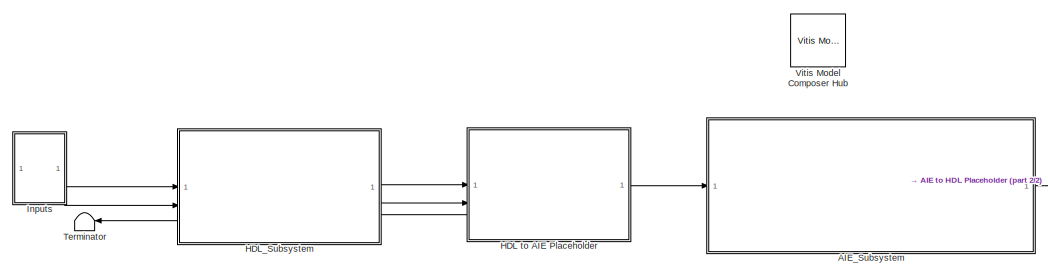
[diagram: root canvas - part 1/2, left side, full height]
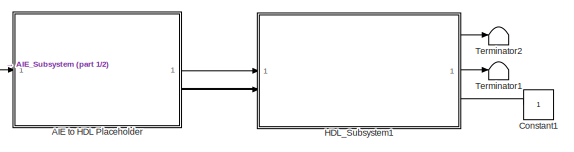
[diagram: root canvas - part 2/2, bottom right region]
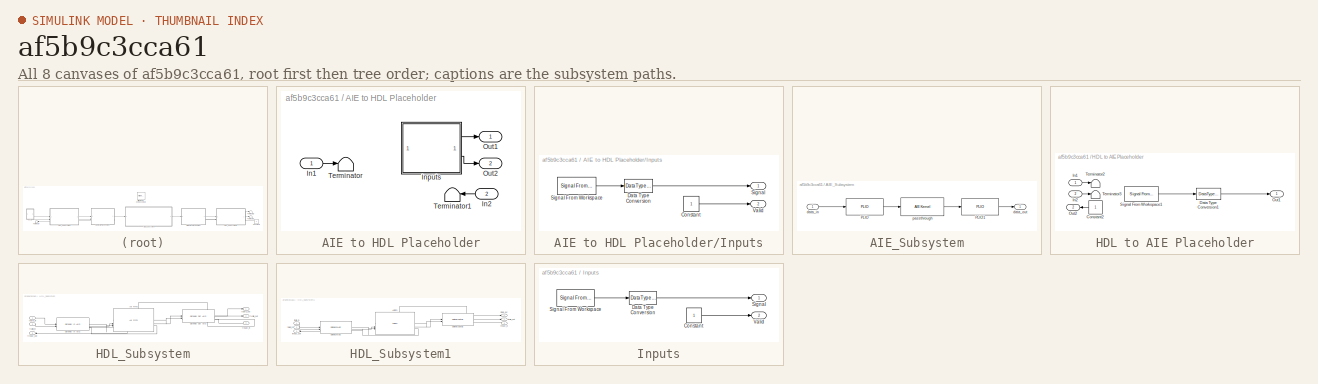
[diagram: thumbnail index - all 8 canvases of the model, root first then tree order]
MODEL slx_af5b9c3cca61
KIND model
CONFIG AbsTol = auto
CONFIG EnableMultiTasking = off
CONFIG FixedStep = auto
CONFIG InitFcn = xlEvaluateHDLBlocks('AIE_HDL')
CONFIG MaxStep = auto
CONFIG MinStep = auto
CONFIG RelTol = 1e-3
CONFIG SampleTimeConstraint = Unconstrained
CONFIG SolverName = FixedStepDiscrete
CONFIG StartTime = 0.0
CONFIG StopTime = 100*2e-9
BLOCK [SubSystem] AIE to HDL Placeholder
  PortSchema = {"entries":[{"content":{"sides":[{"content":{"connectorIds":["In1"]},"type":"ConnectorPlacement.EquallySpacedRectSide","uuid":"7ec462a4-9987-47a7-8ef6-3d77f6cbc297"},{"content":{"connectorIds":["Out1","Out2","In2"],"side":"RIGHT"},"type":"ConnectorPlacement.EquallySpacedRectSide","uuid":"048d0a02-5e23-4721-b2a0-067b0b8ade54"},{"content":{"connectorIds":[],"side":"TOP"},"type":"ConnectorPlacement.E...<+253ch>
BLOCK [Inport] AIE to HDL Placeholder/In1
BLOCK [Inport] AIE to HDL Placeholder/In2
  Port = 2
BLOCK [SubSystem] AIE to HDL Placeholder/Inputs
BLOCK [Constant] AIE to HDL Placeholder/Inputs/Constant
  OutDataTypeStr = boolean
  SampleTime = 2e-9
BLOCK [DataTypeConversion] AIE to HDL Placeholder/Inputs/Data Type Conversion
  OutDataTypeStr = uint64
  RndMeth = Floor
  SaturateOnIntegerOverflow = off
BLOCK [Outport] AIE to HDL Placeholder/Inputs/Signal
BLOCK [Reference] AIE to HDL Placeholder/Inputs/Signal From Workspace  REF=dspsrcs4/Signal From
Workspace
  SourceBlock = dspsrcs4/Signal From\nWorkspace
  SourceType = Signal From Workspace
BLOCK [Outport] AIE to HDL Placeholder/Inputs/Valid
  Port = 2
BLOCK [Outport] AIE to HDL Placeholder/Out1
BLOCK [Outport] AIE to HDL Placeholder/Out2
  Port = 2
BLOCK [Terminator] AIE to HDL Placeholder/Terminator
BLOCK [Terminator] AIE to HDL Placeholder/Terminator1
BLOCK [SubSystem] AIE_Subsystem
BLOCK [Reference] AIE_Subsystem/PLIO  REF=aieBasic/PLIO
  SourceBlock = aieBasic/PLIO
  SourceType = PLIO
BLOCK [Reference] AIE_Subsystem/PLIO1  REF=aieBasic/PLIO
  SourceBlock = aieBasic/PLIO
  SourceType = PLIO
BLOCK [Inport] AIE_Subsystem/data_in
BLOCK [Outport] AIE_Subsystem/data_out
BLOCK [Reference] AIE_Subsystem/passthrough  REF=aieBasic/AIE Kernel
  SourceBlock = aieBasic/AIE Kernel
  SourceType = AIE Kernel Function
BLOCK [Constant] Constant1
  OutDataTypeStr = boolean
  SampleTime = 2e-9
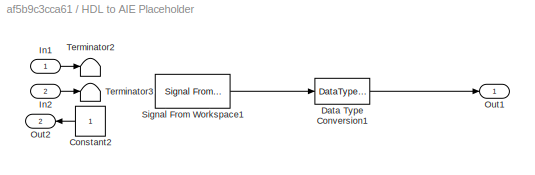
BLOCK [SubSystem] HDL to AIE Placeholder
  PortSchema = {"entries":[{"content":{"sides":[{"content":{"connectorIds":["In1","In2","Out2"]},"type":"ConnectorPlacement.EquallySpacedRectSide","uuid":"7ec462a4-9987-47a7-8ef6-3d77f6cbc297"},{"content":{"connectorIds":["Out1"],"side":"RIGHT"},"type":"ConnectorPlacement.EquallySpacedRectSide","uuid":"048d0a02-5e23-4721-b2a0-067b0b8ade54"},{"content":{"connectorIds":[],"side":"TOP"},"type":"ConnectorPlacement.E...<+253ch>
BLOCK [Constant] HDL to AIE Placeholder/Constant2
  OutDataTypeStr = boolean
  SampleTime = 2e-9
BLOCK [DataTypeConversion] HDL to AIE Placeholder/Data Type Conversion1
  OutDataTypeStr = int32
  RndMeth = Floor
  SaturateOnIntegerOverflow = off
BLOCK [Inport] HDL to AIE Placeholder/In1
BLOCK [Inport] HDL to AIE Placeholder/In2
  Port = 2
BLOCK [Outport] HDL to AIE Placeholder/Out1
BLOCK [Outport] HDL to AIE Placeholder/Out2
  Port = 2
BLOCK [Reference] HDL to AIE Placeholder/Signal From Workspace1  REF=dspsrcs4/Signal From
Workspace
  SourceBlock = dspsrcs4/Signal From\nWorkspace
  SourceType = Signal From Workspace
BLOCK [Terminator] HDL to AIE Placeholder/Terminator2
BLOCK [Terminator] HDL to AIE Placeholder/Terminator3
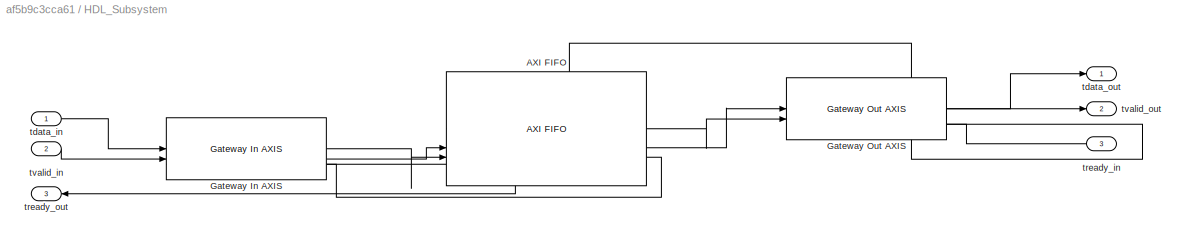
BLOCK [SubSystem] HDL_Subsystem
  PortSchema = {"entries":[{"content":{"sides":[{"content":{"connectorIds":["In1","In2","Out3"]},"type":"ConnectorPlacement.EquallySpacedRectSide","uuid":"989cb16a-31ef-4a7b-a4d3-adb9fa6297fb"},{"content":{"connectorIds":["Out1","Out2","In3"],"side":"RIGHT"},"type":"ConnectorPlacement.EquallySpacedRectSide","uuid":"9f541dfa-b9f2-4468-aad7-758d6944575e"},{"content":{"connectorIds":[],"side":"TOP"},"type":"Connect...<+268ch>
BLOCK [Reference] HDL_Subsystem/AXI FIFO  REF=hdlBasic/AXI FIFO
  SourceBlock = hdlBasic/AXI FIFO
  SourceType = AXI FIFO Block Block
BLOCK [Reference] HDL_Subsystem/Gateway In AXIS  REF=hdlUtilities/Gateway In AXIS
  SourceBlock = hdlUtilities/Gateway In AXIS
  SourceType = Gateway In AXIS
BLOCK [Reference] HDL_Subsystem/Gateway Out AXIS  REF=hdlUtilities/Gateway Out AXIS
  SourceBlock = hdlUtilities/Gateway Out AXIS
  SourceType = Gateway Out AXIS
BLOCK [Inport] HDL_Subsystem/tdata_in
BLOCK [Outport] HDL_Subsystem/tdata_out
BLOCK [Inport] HDL_Subsystem/tready_in
  Port = 3
BLOCK [Outport] HDL_Subsystem/tready_out
  Port = 3
BLOCK [Inport] HDL_Subsystem/tvalid_in
  Port = 2
BLOCK [Outport] HDL_Subsystem/tvalid_out
  Port = 2
BLOCK [SubSystem] HDL_Subsystem1
  PortSchema = {"entries":[{"content":{"sides":[{"content":{"connectorIds":["In1","In2","Out3"]},"type":"ConnectorPlacement.EquallySpacedRectSide","uuid":"989cb16a-31ef-4a7b-a4d3-adb9fa6297fb"},{"content":{"connectorIds":["Out1","Out2","In3"],"side":"RIGHT"},"type":"ConnectorPlacement.EquallySpacedRectSide","uuid":"9f541dfa-b9f2-4468-aad7-758d6944575e"},{"content":{"connectorIds":[],"side":"TOP"},"type":"Connect...<+268ch>
BLOCK [Reference] HDL_Subsystem1/AXI FIFO  REF=hdlBasic/AXI FIFO
  SourceBlock = hdlBasic/AXI FIFO
  SourceType = AXI FIFO Block Block
BLOCK [Reference] HDL_Subsystem1/Gateway In AXIS  REF=hdlUtilities/Gateway In AXIS
  SourceBlock = hdlUtilities/Gateway In AXIS
  SourceType = Gateway In AXIS
BLOCK [Reference] HDL_Subsystem1/Gateway Out AXIS  REF=hdlUtilities/Gateway Out AXIS
  SourceBlock = hdlUtilities/Gateway Out AXIS
  SourceType = Gateway Out AXIS
BLOCK [Inport] HDL_Subsystem1/tdata_in
BLOCK [Outport] HDL_Subsystem1/tdata_out
BLOCK [Inport] HDL_Subsystem1/tready_in
  Port = 3
BLOCK [Outport] HDL_Subsystem1/tready_out
  Port = 3
BLOCK [Inport] HDL_Subsystem1/tvalid_in
  Port = 2
BLOCK [Outport] HDL_Subsystem1/tvalid_out
  Port = 2
BLOCK [SubSystem] Inputs
BLOCK [Constant] Inputs/Constant
  OutDataTypeStr = boolean
  SampleTime = 2e-9
BLOCK [DataTypeConversion] Inputs/Data Type Conversion
  OutDataTypeStr = uint64
  RndMeth = Floor
  SaturateOnIntegerOverflow = off
BLOCK [Outport] Inputs/Signal
BLOCK [Reference] Inputs/Signal From Workspace  REF=dspsrcs4/Signal From
Workspace
  SourceBlock = dspsrcs4/Signal From\nWorkspace
  SourceType = Signal From Workspace
BLOCK [Outport] Inputs/Valid
  Port = 2
BLOCK [Terminator] Terminator
BLOCK [Terminator] Terminator1
BLOCK [Terminator] Terminator2
BLOCK [Reference] Vitis Model Composer Hub  REF=vmcUtilities/Vitis Model Composer Hub
  SourceBlock = vmcUtilities/Vitis Model Composer Hub
  SourceType = VMC Hub
  Tag = genX
  UserDataPersistent = on
LINE AIE to HDL Placeholder/In1:1 -> AIE to HDL Placeholder/Terminator:1
LINE AIE to HDL Placeholder/In2:1 -> AIE to HDL Placeholder/Terminator1:1
LINE AIE to HDL Placeholder/Inputs/Constant:1 -> AIE to HDL Placeholder/Inputs/Valid:1
LINE AIE to HDL Placeholder/Inputs/Data Type Conversion:1 -> AIE to HDL Placeholder/Inputs/Signal:1
LINE AIE to HDL Placeholder/Inputs/Signal From Workspace:1 -> AIE to HDL Placeholder/Inputs/Data Type Conversion:1
LINE AIE to HDL Placeholder/Inputs:1 -> AIE to HDL Placeholder/Out1:1
LINE AIE to HDL Placeholder/Inputs:2 -> AIE to HDL Placeholder/Out2:1
LINE AIE to HDL Placeholder:1 -> HDL_Subsystem1:1
LINE AIE to HDL Placeholder:2 -> HDL_Subsystem1:2
LINE AIE_Subsystem/PLIO1:1 -> AIE_Subsystem/data_out:1
LINE AIE_Subsystem/PLIO:1 -> AIE_Subsystem/passthrough:1
LINE AIE_Subsystem/data_in:1 -> AIE_Subsystem/PLIO:1
LINE AIE_Subsystem/passthrough:1 -> AIE_Subsystem/PLIO1:1
LINE AIE_Subsystem:1 -> AIE to HDL Placeholder:1
LINE Constant1:1 -> HDL_Subsystem1:3
LINE HDL to AIE Placeholder/Constant2:1 -> HDL to AIE Placeholder/Out2:1
LINE HDL to AIE Placeholder/Data Type Conversion1:1 -> HDL to AIE Placeholder/Out1:1
LINE HDL to AIE Placeholder/In1:1 -> HDL to AIE Placeholder/Terminator2:1
LINE HDL to AIE Placeholder/In2:1 -> HDL to AIE Placeholder/Terminator3:1
LINE HDL to AIE Placeholder/Signal From Workspace1:1 -> HDL to AIE Placeholder/Data Type Conversion1:1
LINE HDL to AIE Placeholder:1 -> AIE_Subsystem:1
LINE HDL to AIE Placeholder:2 -> HDL_Subsystem:3
LINE HDL_Subsystem/AXI FIFO:1 -> HDL_Subsystem/Gateway Out AXIS:2
LINE HDL_Subsystem/AXI FIFO:2 -> HDL_Subsystem/Gateway Out AXIS:1
LINE HDL_Subsystem/AXI FIFO:3 -> HDL_Subsystem/Gateway In AXIS:3
LINE HDL_Subsystem/Gateway In AXIS:1 -> HDL_Subsystem/AXI FIFO:3
LINE HDL_Subsystem/Gateway In AXIS:2 -> HDL_Subsystem/AXI FIFO:2
LINE HDL_Subsystem/Gateway In AXIS:3 -> HDL_Subsystem/tready_out:1
LINE HDL_Subsystem/Gateway Out AXIS:1 -> HDL_Subsystem/tdata_out:1
LINE HDL_Subsystem/Gateway Out AXIS:2 -> HDL_Subsystem/tvalid_out:1
LINE HDL_Subsystem/Gateway Out AXIS:3 -> HDL_Subsystem/AXI FIFO:1
LINE HDL_Subsystem/tdata_in:1 -> HDL_Subsystem/Gateway In AXIS:1
LINE HDL_Subsystem/tready_in:1 -> HDL_Subsystem/Gateway Out AXIS:3
LINE HDL_Subsystem/tvalid_in:1 -> HDL_Subsystem/Gateway In AXIS:2
LINE HDL_Subsystem1/AXI FIFO:1 -> HDL_Subsystem1/Gateway Out AXIS:2
LINE HDL_Subsystem1/AXI FIFO:2 -> HDL_Subsystem1/Gateway Out AXIS:1
LINE HDL_Subsystem1/AXI FIFO:3 -> HDL_Subsystem1/Gateway In AXIS:3
LINE HDL_Subsystem1/Gateway In AXIS:1 -> HDL_Subsystem1/AXI FIFO:3
LINE HDL_Subsystem1/Gateway In AXIS:2 -> HDL_Subsystem1/AXI FIFO:2
LINE HDL_Subsystem1/Gateway In AXIS:3 -> HDL_Subsystem1/tready_out:1
LINE HDL_Subsystem1/Gateway Out AXIS:1 -> HDL_Subsystem1/tdata_out:1
LINE HDL_Subsystem1/Gateway Out AXIS:2 -> HDL_Subsystem1/tvalid_out:1
LINE HDL_Subsystem1/Gateway Out AXIS:3 -> HDL_Subsystem1/AXI FIFO:1
LINE HDL_Subsystem1/tdata_in:1 -> HDL_Subsystem1/Gateway In AXIS:1
LINE HDL_Subsystem1/tready_in:1 -> HDL_Subsystem1/Gateway Out AXIS:3
LINE HDL_Subsystem1/tvalid_in:1 -> HDL_Subsystem1/Gateway In AXIS:2
LINE HDL_Subsystem1:1 -> Terminator2:1
LINE HDL_Subsystem1:2 -> Terminator1:1
LINE HDL_Subsystem1:3 -> AIE to HDL Placeholder:2
LINE HDL_Subsystem:1 -> HDL to AIE Placeholder:1
LINE HDL_Subsystem:2 -> HDL to AIE Placeholder:2
LINE HDL_Subsystem:3 -> Terminator:1
LINE Inputs/Constant:1 -> Inputs/Valid:1
LINE Inputs/Data Type Conversion:1 -> Inputs/Signal:1
LINE Inputs/Signal From Workspace:1 -> Inputs/Data Type Conversion:1
LINE Inputs:1 -> HDL_Subsystem:1
LINE Inputs:2 -> HDL_Subsystem:2
